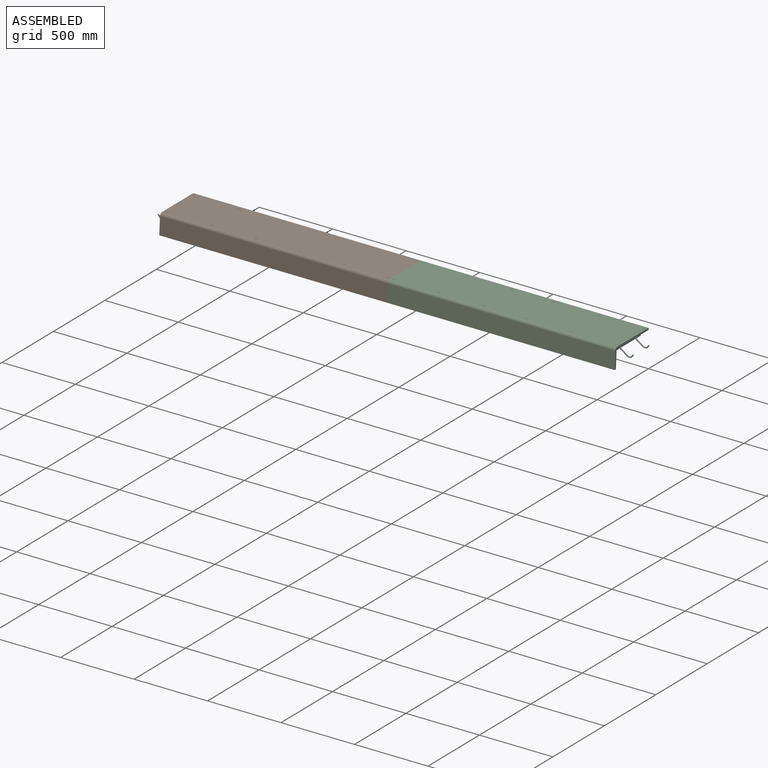
[diagram: assembled view]
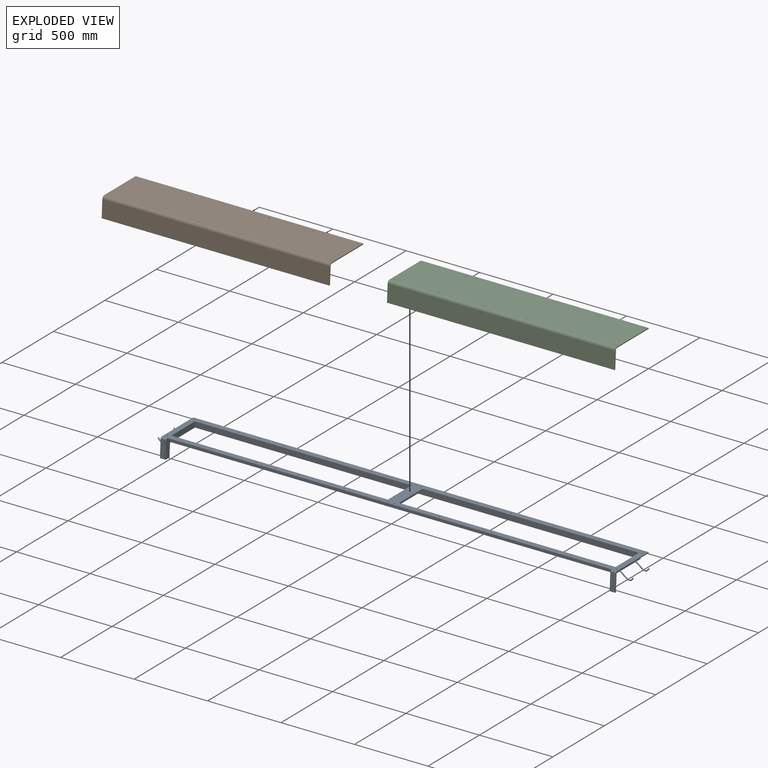
[diagram: exploded view]
GUIDED TOUR — MATED ASSEMBLY (Onshape document d203905e6e115a0f9dc3a642, AutoMate assembly d203905e6e115a0f9dc3a642_8ffde99635a4b6ed4173e969_113ee5b379fa2d3dfb1560c8_default)

This assembly has 3 components, labeled P0..P2 below (a component is one placed occurrence of a part; the same part can appear more than once), held together by 2 mates. A mate is a constraint between two components; its type names the relative motion it leaves free:
  FASTENED — locks the two components together rigidly (no relative motion).
Axis/direction vectors are unit vectors and 'through' points are millimeter coordinates, both in the assembly's world frame.

MATES
  1. FASTENED "Fastened 1": P2 <-> P0, direction (0.000, 0.000, 1.000) through (1585.60, 190.06, 124.53) mm
  2. FASTENED "Fastened 2": P1 <-> P2, direction (1.000, 0.000, 0.000) through (55.25, 3.39, 102.22) mm

ASSEMBLY ORDER
  1. P2 — the base component [order verified]
  2. P1 [order verified]
  3. P0 [order verified]
Order-tag legend:
  [order verified] — this step's position reverses a verified removal order: the component was checked to insert without passing through the ones already placed.

Of the 3 components, 2 carry the full construction recipe — the FeatureScript program that regenerates the part's solid from scratch; the rest are supplied as boundary geometry only.
Each toured component is shown spotlighted twice — in the assembled view, then in the exploded view, where a leader line traces a displaced component back to its assembled socket (saturated green if recipe-attached, orange if geometry-only; every other component desaturated gray) — followed by its recipe or geometry summary and the mates that hold it.
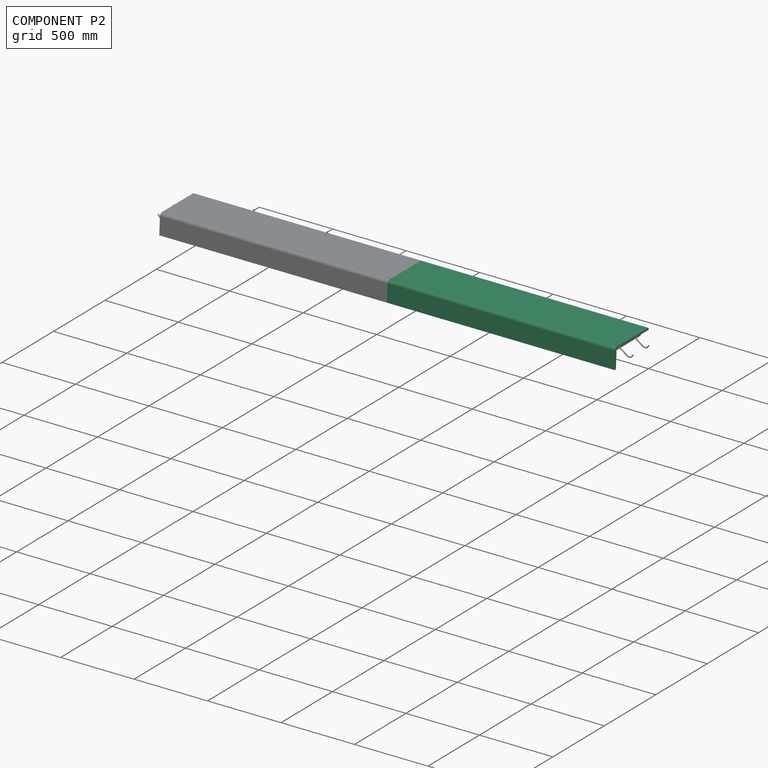
[diagram: component P2 — assembled]
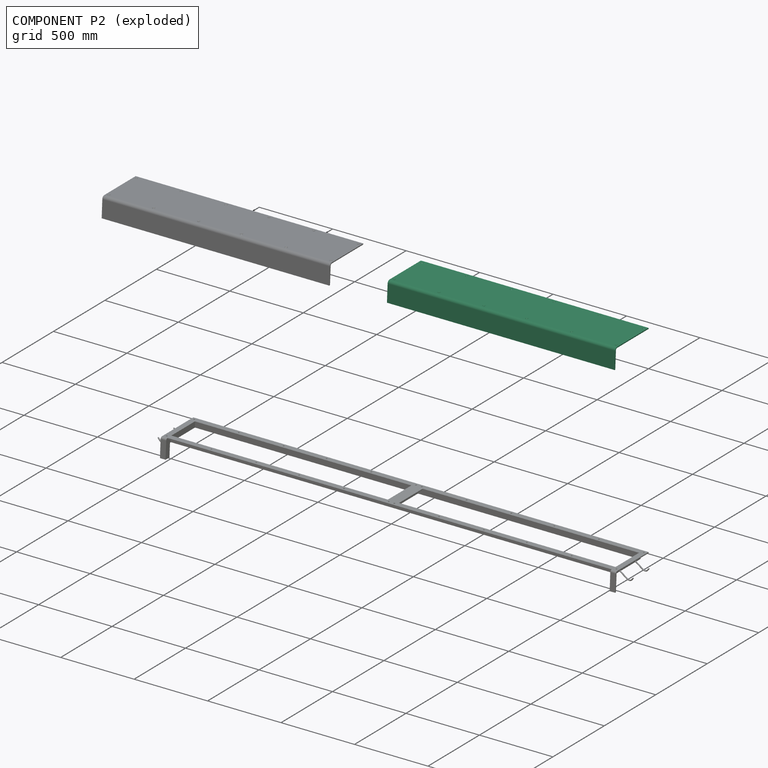
[diagram: component P2 — exploded]
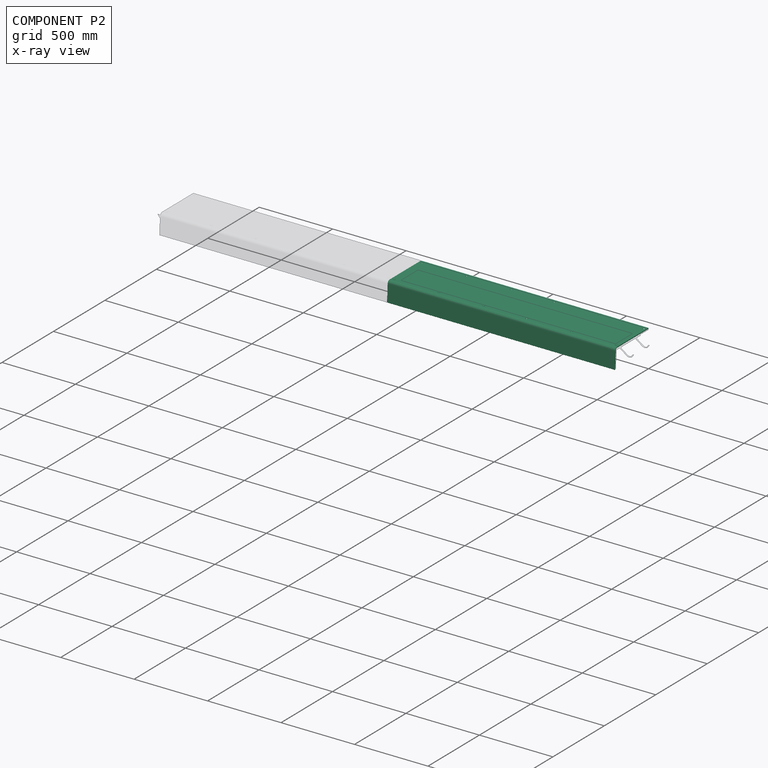
[diagram: component P2 — x-ray view]
COMPONENT P2 — same part as P1 (CADFS 00211699); its construction recipe is shown at P1.
Held by: FASTENED mate "Fastened 1" to P0; FASTENED mate "Fastened 2" to P1.
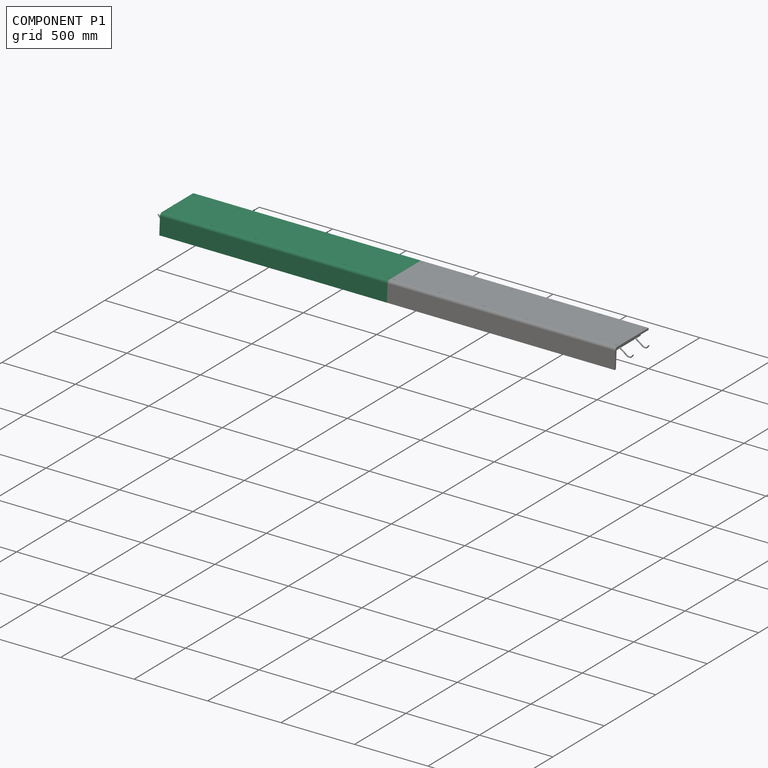
[diagram: component P1 — assembled]
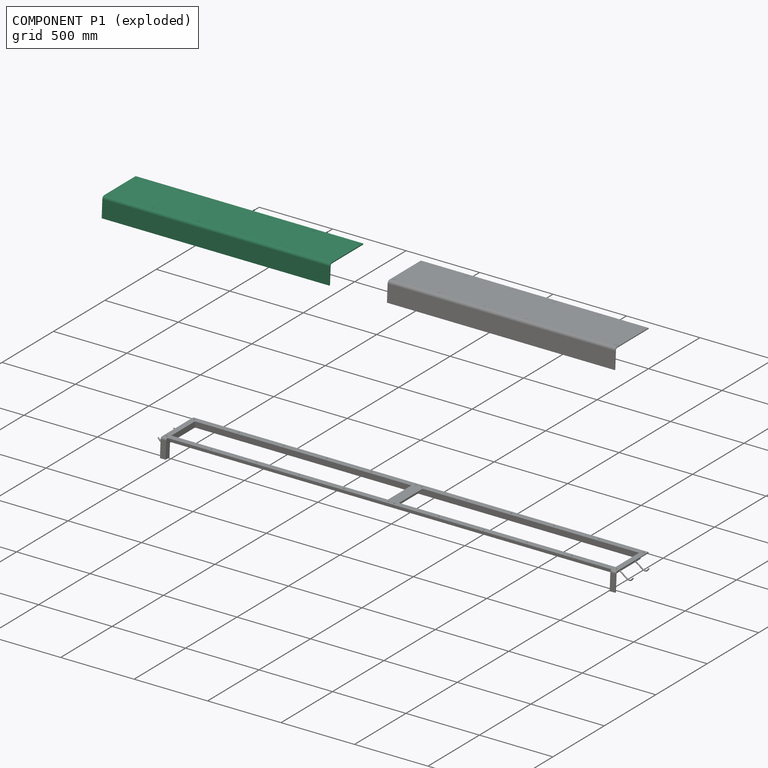
[diagram: component P1 — exploded]
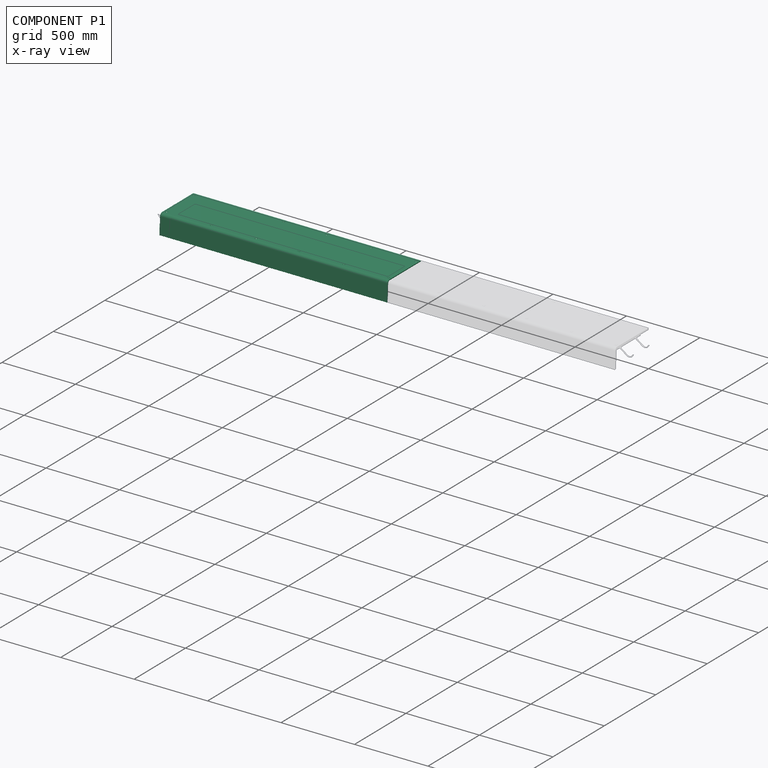
[diagram: component P1 — x-ray view]
COMPONENT P1 — recipe-attached (CADFS 00211699, mesh-verified: the recipe's output STEP matches this component's geometry to below the mesh-comparison resolution (tessellation chordal tolerance ~2.38 mm)).
Held by: FASTENED mate "Fastened 2" to P2.
Construction recipe (FeatureScript — the CAD program that rebuilds this solid; sketch coordinates are in the units given by the * unit suffixes, e.g. mm):

FeatureScript 1511;
import(path : "onshape/std/geometry.fs", version : "1511.0");
import(path : "onshape/std/common.fs", version : "1511.0");
const mm = millimeter;
const VERTEX = EntityType.VERTEX;
const EDGE = EntityType.EDGE;
const FACE = EntityType.FACE;
const BODY = EntityType.BODY;
function v(x, y){return vector(x, y);}
function OD(order){return orderDisambiguation(order);}
function OSD(set){return originalSetDisambiguation(set);}
function TD(topology){return topologyDisambiguation(topology);}
function TDD(query){return trueDependencyDisambiguation(query);}
function sQuery(a, b, c) {return sketchEntityQuery(a, b, c);}

annotation { "Feature Type Name" : "Feature", "Feature Type Description" : "" }
export const myFeature = defineFeature(function(context is Context, id is Id, definition is map)
    precondition{}
    {
        {
            var Q0;
            Q0=qCreatedBy(makeId("Right.planeOp"),FACE);
            var sketch = newSketch(context, id + "F0", { "sketchPlane" : qUnion([Q0])});
            skLineSegment(sketch, "E0", {"start": v(304.8, 0) * mm, "end": v(0, 0) * mm, "construction": true});
            skArc(sketch, "E1", {"start": v(0, 0) * mm, "mid": v(-10.91, -4.34) * mm, "end": v(-15.85, -15) * mm, "construction": true});
            skLineSegment(sketch, "E2", {"start": v(-15.85, -15) * mm, "end": v(-22.22, -130.18) * mm, "construction": true});
            skLineSegment(sketch, "E3.0", {"start": v(-19.02, -14.82) * mm, "end": v(-25.4, -130.18) * mm});
            skArc(sketch, "E3.1", {"start": v(0, 3.17) * mm, "mid": v(-13.1, -2.04) * mm, "end": v(-19.02, -14.82) * mm});
            skLineSegment(sketch, "E3.2", {"start": v(304.8, 3.18) * mm, "end": v(0, 3.18) * mm});
            skLineSegment(sketch, "E4", {"start": v(-22.22, -130.18) * mm, "end": v(-25.4, -130.18) * mm});
            skLineSegment(sketch, "E5", {"start": v(304.8, 3.18) * mm, "end": v(304.8, 0) * mm});
            skLineSegment(sketch, "E6.0", {"start": v(-12.68, -15.17) * mm, "end": v(-19.04, -130.18) * mm});
            skArc(sketch, "E6.1", {"start": v(0, -3.18) * mm, "mid": v(-8.73, -6.65) * mm, "end": v(-12.68, -15.17) * mm});
            skLineSegment(sketch, "E6.2", {"start": v(304.8, -3.18) * mm, "end": v(0, -3.18) * mm});
            skLineSegment(sketch, "E7", {"start": v(-22.22, -130.18) * mm, "end": v(-19.04, -130.18) * mm});
            skLineSegment(sketch, "E8", {"start": v(304.8, -3.18) * mm, "end": v(304.8, 0) * mm});
            skSolve(sketch);
        }
        {
            var Q0;
            Q0 = qSketchRegion(id + "F0", true);
            extrude(context, id + "F1", {"entities" : qUnion([Q0]), "depth" : 1549.4 * mm});
        }
        {
            var Q0;
            Q0=makeQuery(id+"F1.opExtrude","SWEPT_FACE",FACE,{"disambiguationData":[OSD([sQuery(id+"F0.wireOp",EDGE,"E3.2")])]});
            var sketch = newSketch(context, id + "F2", { "sketchPlane" : qUnion([Q0])});
            skPoint(sketch, "E9", {"position": v(19.05, 285.75) * mm});
            skPoint(sketch, "E10", {"position": v(323.85, 285.75) * mm});
            skPoint(sketch, "E11", {"position": v(628.65, 285.75) * mm});
            skPoint(sketch, "E12", {"position": v(1530.35, 285.75) * mm});
            skPoint(sketch, "E13", {"position": v(1225.55, 285.75) * mm});
            skPoint(sketch, "E14", {"position": v(920.75, 285.75) * mm});
            skLineSegment(sketch, "E15", {"start": v(82.3, 152.4) * mm, "end": v(575.4, 152.4) * mm, "construction": true});
            skPoint(sketch, "E16.MirrorP", {"position": v(19.05, 19.05) * mm});
            skPoint(sketch, "E17.MirrorP", {"position": v(323.85, 19.05) * mm});
            skPoint(sketch, "E18.MirrorP", {"position": v(628.65, 19.05) * mm});
            skPoint(sketch, "E19.MirrorP", {"position": v(920.75, 19.05) * mm});
            skPoint(sketch, "E20.MirrorP", {"position": v(1225.55, 19.05) * mm});
            skPoint(sketch, "E21.MirrorP", {"position": v(1530.35, 19.05) * mm});
            skSolve(sketch);
        }
        {
            var Q0;
            Q0=sQuery(id+"F2.wireOp",VERTEX,"E12");
            var Q1;
            Q1=sQuery(id+"F2.wireOp",VERTEX,"E21.MirrorP");
            var Q2;
            Q2=sQuery(id+"F2.wireOp",VERTEX,"E20.MirrorP");
            var Q3;
            Q3=sQuery(id+"F2.wireOp",VERTEX,"E13");
            var Q4;
            Q4=sQuery(id+"F2.wireOp",VERTEX,"E14");
            var Q5;
            Q5=sQuery(id+"F2.wireOp",VERTEX,"E19.MirrorP");
            var Q6;
            Q6=sQuery(id+"F2.wireOp",VERTEX,"E11");
            var Q7;
            Q7=sQuery(id+"F2.wireOp",VERTEX,"E18.MirrorP");
            var Q8;
            Q8=sQuery(id+"F2.wireOp",VERTEX,"E17.MirrorP");
            var Q9;
            Q9=sQuery(id+"F2.wireOp",VERTEX,"E10");
            var Q10;
            Q10=sQuery(id+"F2.wireOp",VERTEX,"E9");
            var Q11;
            Q11=sQuery(id+"F2.wireOp",VERTEX,"E16.MirrorP");
            var Q12;
            Q12=makeQuery(id+"F1.opExtrude","SWEPT_BODY",BODY,{"disambiguationData":[OSD([sQuery(id+"F0.wireOp",EDGE,"E3.0"),sQuery(id+"F0.wireOp",EDGE,"E3.1"),sQuery(id+"F0.wireOp",EDGE,"E3.2"),sQuery(id+"F0.wireOp",EDGE,"E4"),sQuery(id+"F0.wireOp",EDGE,"E5"),sQuery(id+"F0.wireOp",EDGE,"E6.0"),sQuery(id+"F0.wireOp",EDGE,"E6.1"),sQuery(id+"F0.wireOp",EDGE,"E6.2"),sQuery(id+"F0.wireOp",EDGE,"E7"),sQuery(id+"F0.wireOp",EDGE,"E8")])]});
            hole(context, id + "F3", {"style" : HoleStyle.C_SINK, "endStyle" : HoleEndStyle.BLIND, "holeDiameter" : 10.57 * mm, "cSinkDiameter" : 19.05 * mm, "cSinkAngle" : 82 * degree, "holeDepth" : 406.4 * mm, "startFromSketch" : true, "locations" : qUnion([Q0, Q1, Q2, Q3, Q4, Q5, Q6, Q7, Q8, Q9, Q10, Q11]), "scope" : qUnion([Q12])});
        }
    });
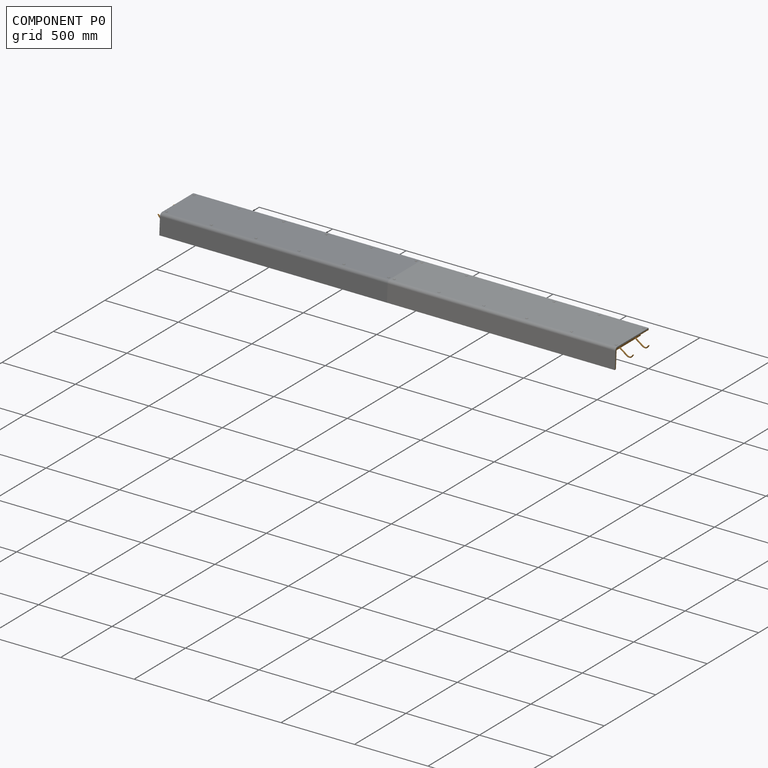
[diagram: component P0 — assembled]
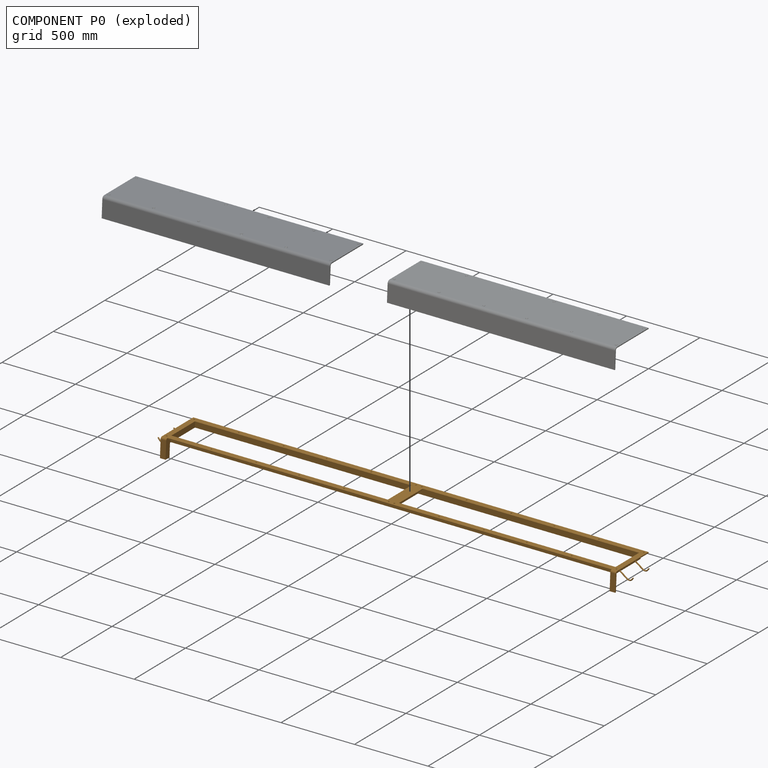
[diagram: component P0 — exploded]
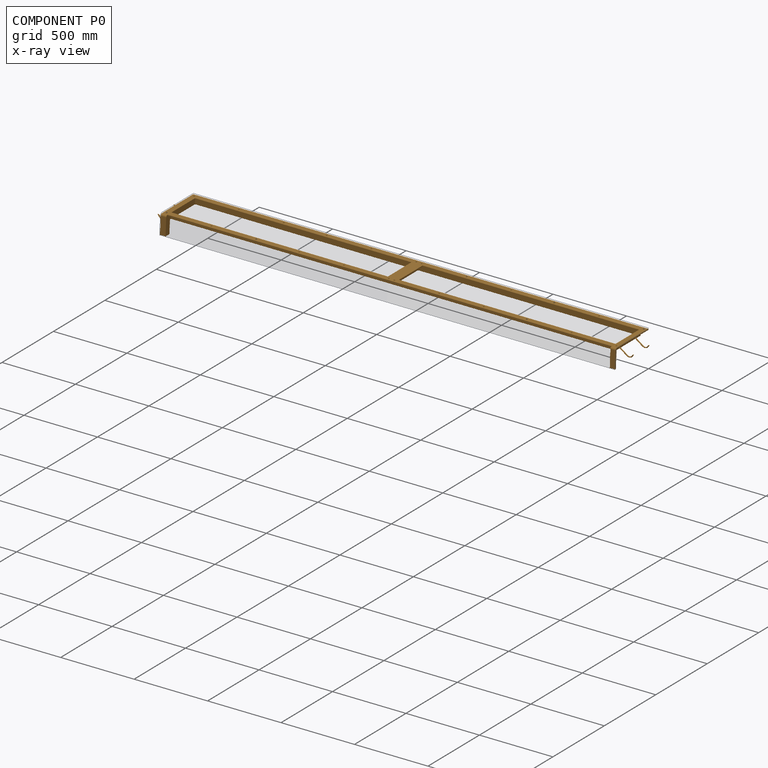
[diagram: component P0 — x-ray view]
COMPONENT P0 — geometry summary (no construction recipe available for this part):
  bounding box: 3250.5 x 399.7 x 127.0 mm
  B-rep topology: 1 solid, 80 faces, 458 edges
  volume: 3313342 mm^3 (2% of its bounding box)
  symmetry: mirror-symmetric across its x mid-plane
Held by: FASTENED mate "Fastened 1" to P2.
PROVENANCE & LICENSES
Assembly (occurrences, transforms, mates, per-part STEP geometry): AutoMate dataset, Zenodo record 7776208, CC0.
Construction recipes: CADFS (HuggingFace VladPyatov/CADFS, CC-BY-4.0, layered over the ABC dataset), FeatureScript reconstruction programs keyed by ABC model id.
Join: ABC meta listings map ABC model id -> Onshape documentId; within a shared document, parts are matched by geometric signature (bounding-box dims + volume at 0.1% relative tolerance, exact B-rep face/solid counts).
Verification: 2 of this assembly's 3 components carry a recipe attachment, and every attachment is mesh-verified: the CADFS STEP and the AutoMate member STEP were compared as meshes in their shared local frame (symmetric sampled-point-to-mesh distance); worst across the 2 attachments: below the mesh-comparison resolution (tessellation chordal tolerance ~2.38 mm) on a 1590 mm part.
Renders: orthographic iso camera (az 35 / el 25); the floor grid conveys scale (grid pitch printed in each image; no ruler). In the exploded view each component is displaced by its stored offset vector: the offsets alone carry the explosion direction (mate normal/axis signs are not orientation cues and do not encode it), and separation distances are assigned per mate-chain, not proportionally to assembly-order depth.
